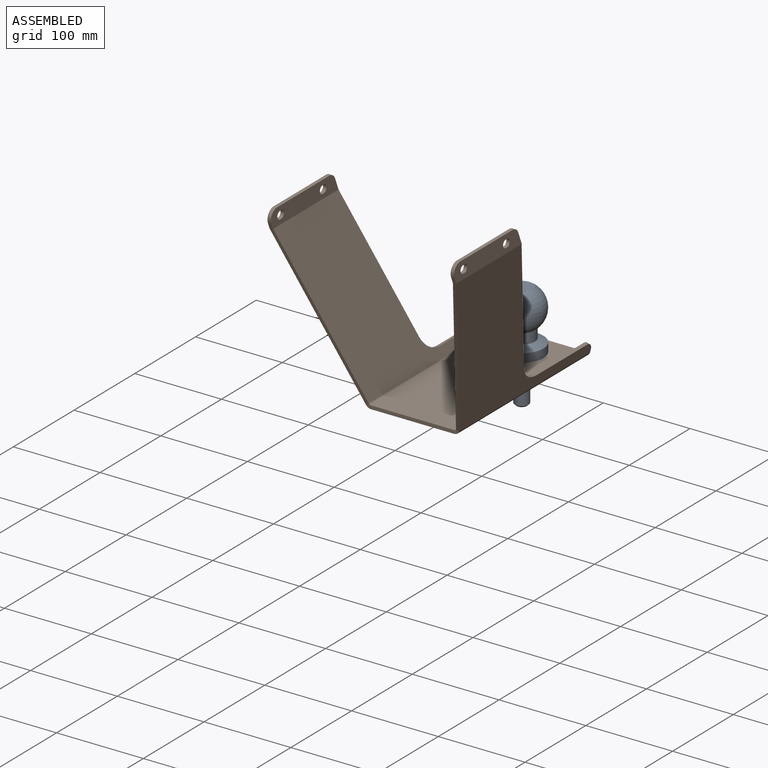
[diagram: assembled view]
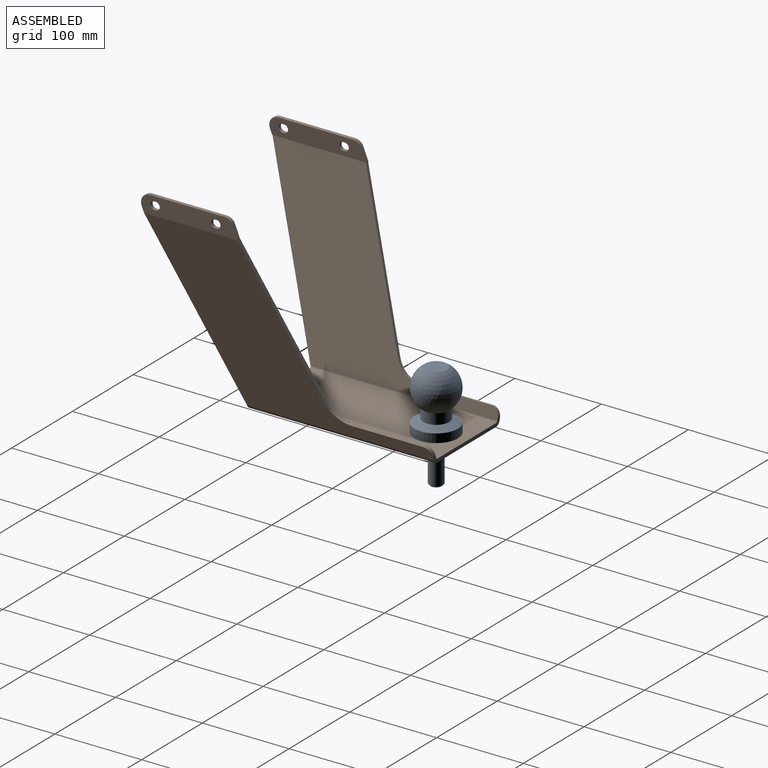
[diagram: assembled view, second angle]
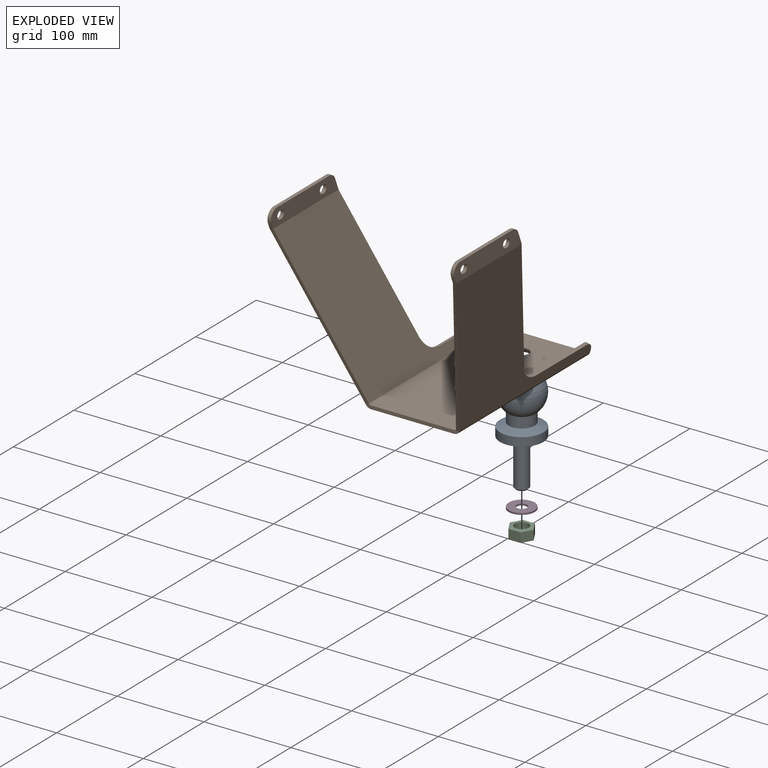
[diagram: exploded view]
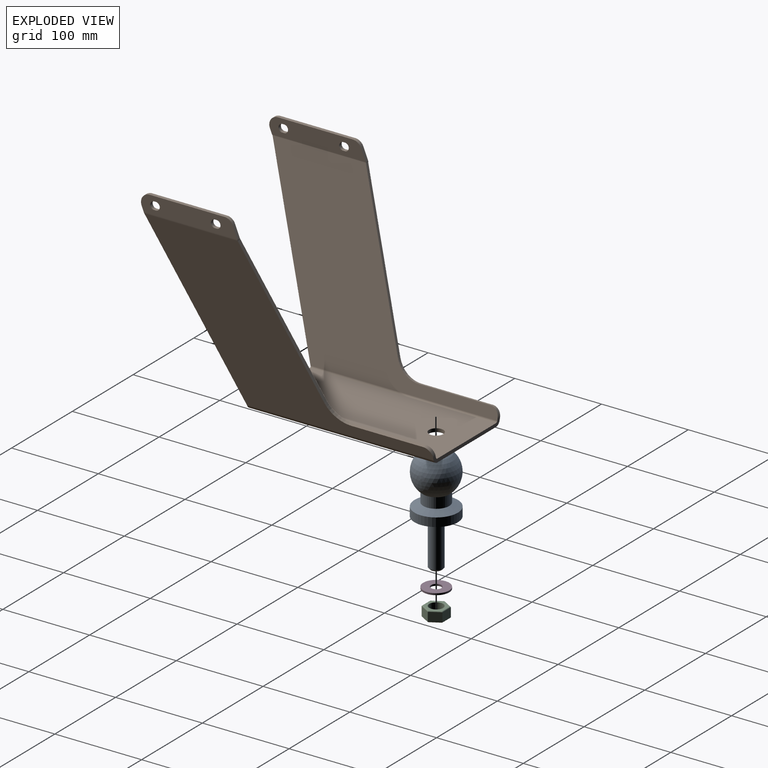
[diagram: exploded view, second angle]
ASSEMBLY  parts=4 mates=3
PART A: 9 faces, bbox 50x50x123 mm
  f0: plane 12x12mm, normal (0,0,-1), area 113.1mm2, adj f8
  f1: plane 25x25mm, normal (0,0,1), area 490.9mm2, adj f2
  f2: sphere r=25mm, area 6542.5mm2, adj f1,f3
  f3: cylinder r=15mm len=30mm, axis (0,0,1), area 1131mm2, adj f2,f4
  f4: cone r=25mm half-angle=66.5deg, axis (0,0,-1), area 1370.4mm2, adj f3,f5
  f5: cylinder r=25mm len=50mm, axis (0,0,1), area 1570.8mm2, adj f4,f6
  f6: plane 50x50mm, normal (0,0,-1), area 1762.4mm2, adj f5,f7
  f7: cylinder r=8mm len=53mm, axis (0,0,1), area 2664.1mm2, adj f6,f8
  f8: cone r=8mm half-angle=45deg, axis (0,0,1), area 124.4mm2, adj f0,f7
PART B: 67 faces, bbox 215.2x300x224 mm
  f0: plane 96.47x4mm, normal (0,1,0), area 385.9mm2, adj f3,f4,f33,f64
  f1: cylinder r=8.25mm len=16.5mm, axis (0,0,1), area 207.3mm2, adj f3,f4
  f2: plane 96.47x4mm, normal (0,-1,0), area 385.9mm2, adj f3,f4,f32,f63
  f3: plane 215x96.47mm, normal (0,0,1), area 20527.3mm2, adj f0,f1,f2,f35,f66
  f4: plane 215x96.47mm, normal (0,0,-1), area 20527.3mm2, adj f0,f1,f2,f34,f65
  f5: plane 296.16x198mm, normal (0.97,0,0.26), area 23512.5mm2, adj f6,f8,f9,f10,f11,f12,f31,f35
  f6: plane 199.04x80.89mm, normal (0.1,-0.93,-0.35), area 881.5mm2, adj f5,f7,f28,f32
  f7: plane 296.16x198mm, normal (-0.97,0,-0.26), area 23512.5mm2, adj f6,f8,f9,f10,f11,f12,f30,f34
  f8: plane 4.57x3.67mm, normal (0,1,0), area 10.9mm2, adj f5,f7,f11,f33
  f9: plane 82.28x3.86mm, normal (-0.26,0,0.97), area 329.1mm2, adj f5,f7,f11,f12
  f10: plane 168.4x68.38mm, normal (-0.1,0.93,0.35), area 745.1mm2, adj f5,f7,f12,f29
  f11: cylinder r=10mm len=10.69mm, axis (0.97,0,0.26), area 62.8mm2, adj f5,f7,f8,f9
  f12: cylinder r=30mm len=27.91mm, axis (-0.97,0,-0.26), area 143.4mm2, adj f5,f7,f9,f10
  f13: plane 4x2mm, normal (0,0,1), area 8mm2, adj f14,f23,f24,f25
  f14: cylinder r=4.5mm len=9mm, axis (1,0,0), area 56.5mm2, adj f13,f15,f24,f25
  f15: plane 4x2mm, normal (0,0,-1), area 8mm2, adj f14,f23,f24,f25
  f16: plane 4x2mm, normal (0,0,-1), area 8mm2, adj f17,f22,f24,f25
  f17: cylinder r=4.5mm len=9mm, axis (1,0,0), area 56.5mm2, adj f16,f18,f24,f25
  f18: plane 4x2mm, normal (0,0,1), area 8mm2, adj f17,f22,f24,f25
  f19: plane 86.42x4mm, normal (0,0,1), area 345.7mm2, adj f24,f25,f26,f27
  f20: plane 5.92x4mm, normal (0,-0.93,-0.38), area 25.6mm2, adj f24,f25,f26,f28
  f21: plane 13.48x5.51mm, normal (0,0.93,0.38), area 58.2mm2, adj f24,f25,f27,f29
  f22: cylinder r=4.5mm len=9mm, axis (1,0,0), area 56.5mm2, adj f16,f18,f24,f25
  f23: cylinder r=4.5mm len=9mm, axis (1,0,0), area 56.5mm2, adj f13,f15,f24,f25
  f24: plane 111.18x19.7mm, normal (1,0,0), area 1905.6mm2, adj f13,f14,f15,f16,f17,f18,f19,f20
  f25: plane 111.18x19.7mm, normal (-1,0,0), area 1905.6mm2, adj f13,f14,f15,f16,f17,f18,f19,f20
  f26: cylinder r=10mm len=13.78mm, axis (1,0,0), area 78.3mm2, adj f19,f20,f24,f25
  f27: cylinder r=10mm len=9.26mm, axis (1,0,0), area 47.3mm2, adj f19,f21,f24,f25
  f28: bspline ~4.08x1.63mm, area 5.3mm2, adj f6,f20,f30,f31
  f29: bspline ~4.08x1.63mm, area 4.6mm2, adj f10,f21,f30,f31
  f30: cylinder r=6.3mm len=108.27mm, axis (0,-1,0), area 177.8mm2, adj f7,f25,f28,f29
  f31: cylinder r=2.3mm len=108.27mm, axis (0,-1,0), area 64.9mm2, adj f5,f24,f28,f29
  f32: bspline ~6.09x5.7mm, area 22.9mm2, adj f2,f6,f34,f35
  f33: plane 6.09x5.7mm, normal (0,1,0), area 22.5mm2, adj f0,f8,f34,f35
  f34: cylinder r=6.3mm len=215.27mm, axis (0,-1,0), area 1771.9mm2, adj f4,f7,f32,f33
  f35: cylinder r=2.3mm len=215.27mm, axis (0,-1,0), area 646.9mm2, adj f3,f5,f32,f33
  f36: plane 296.16x198mm, normal (0.97,0,-0.26), area 23512.5mm2, adj f37,f39,f40,f41,f42,f43,f61,f65
  f37: plane 199.04x80.89mm, normal (-0.1,-0.93,-0.35), area 881.5mm2, adj f36,f38,f59,f63
  f38: plane 296.16x198mm, normal (-0.97,0,0.26), area 23512.5mm2, adj f37,f39,f40,f41,f42,f43,f62,f66
  f39: plane 4.57x3.67mm, normal (0,1,0), area 10.9mm2, adj f36,f38,f42,f64
  f40: plane 168.4x68.38mm, normal (0.1,0.93,0.35), area 745.1mm2, adj f36,f38,f43,f60
  f41: plane 82.28x3.86mm, normal (0.26,0,0.97), area 329.1mm2, adj f36,f38,f42,f43
  f42: cylinder r=10mm len=10.69mm, axis (0.97,0,-0.26), area 62.8mm2, adj f36,f38,f39,f41
  f43: cylinder r=30mm len=27.91mm, axis (0.97,0,-0.26), area 143.4mm2, adj f36,f38,f40,f41
  f44: plane 4x2mm, normal (0,0,-1), area 8mm2, adj f45,f54,f55,f56
  f45: cylinder r=4.5mm len=9mm, axis (-1,0,0), area 56.5mm2, adj f44,f46,f55,f56
  f46: plane 4x2mm, normal (0,0,1), area 8mm2, adj f45,f54,f55,f56
  f47: plane 4x2mm, normal (0,0,-1), area 8mm2, adj f48,f53,f55,f56
  f48: cylinder r=4.5mm len=9mm, axis (-1,0,0), area 56.5mm2, adj f47,f49,f55,f56
  f49: plane 4x2mm, normal (0,0,1), area 8mm2, adj f48,f53,f55,f56
  f50: plane 5.92x4mm, normal (0,-0.93,-0.38), area 25.6mm2, adj f55,f56,f58,f59
  f51: plane 86.42x4mm, normal (0,0,1), area 345.7mm2, adj f55,f56,f57,f58
  f52: plane 13.48x5.51mm, normal (0,0.93,0.38), area 58.2mm2, adj f55,f56,f57,f60
  f53: cylinder r=4.5mm len=9mm, axis (-1,0,0), area 56.5mm2, adj f47,f49,f55,f56
  f54: cylinder r=4.5mm len=9mm, axis (-1,0,0), area 56.5mm2, adj f44,f46,f55,f56
  f55: plane 111.18x19.7mm, normal (-1,0,0), area 1905.6mm2, adj f44,f45,f46,f47,f48,f49,f50,f51
  f56: plane 111.18x19.7mm, normal (1,0,0), area 1905.6mm2, adj f44,f45,f46,f47,f48,f49,f50,f51
  f57: cylinder r=10mm len=9.26mm, axis (1,0,0), area 47.3mm2, adj f51,f52,f55,f56
  f58: cylinder r=10mm len=13.78mm, axis (1,0,0), area 78.3mm2, adj f50,f51,f55,f56
  f59: bspline ~4.08x1.63mm, area 5.3mm2, adj f37,f50,f61,f62
  f60: bspline ~4.08x1.63mm, area 4.6mm2, adj f40,f52,f61,f62
  f61: cylinder r=6.3mm len=108.27mm, axis (0,-1,0), area 177.8mm2, adj f36,f56,f59,f60
  f62: cylinder r=2.3mm len=108.27mm, axis (0,-1,0), area 64.9mm2, adj f38,f55,f59,f60
  f63: bspline ~6.09x5.7mm, area 22.9mm2, adj f2,f37,f65,f66
  f64: plane 6.09x5.7mm, normal (0,1,0), area 22.5mm2, adj f0,f39,f65,f66
  f65: cylinder r=6.3mm len=215.27mm, axis (0,-1,0), area 1771.9mm2, adj f4,f36,f63,f64
  f66: cylinder r=2.3mm len=215.27mm, axis (0,-1,0), area 646.9mm2, adj f3,f38,f63,f64
PART C: 21 faces, bbox 27.7x24x12 mm
  f0: plane 12x10mm, normal (0.87,0.5,0), area 138.6mm2, adj f1,f5,f12,f18
  f1: plane 13.86x10mm, normal (0,1,0), area 138.6mm2, adj f0,f2,f10,f16
  f2: plane 12x10mm, normal (-0.87,0.5,0), area 138.6mm2, adj f1,f3,f9,f15
  f3: plane 12x10mm, normal (-0.87,-0.5,0), area 138.6mm2, adj f2,f4,f11,f17
  f4: plane 13.86x10mm, normal (0,-1,0), area 138.6mm2, adj f3,f5,f13,f19
  f5: plane 12x10mm, normal (0.87,-0.5,0), area 138.6mm2, adj f0,f4,f14,f20
  f6: cylinder r=8mm len=16mm, axis (0,0,-1), area 603.2mm2, adj f7,f8
  f7: plane 25.4x22mm, normal (0,0,1), area 218.1mm2, adj f6,f15,f16,f17,f18,f19,f20
  f8: plane 25.4x22mm, normal (0,0,-1), area 218.1mm2, adj f6,f9,f10,f11,f12,f13,f14
  f9: cylinder r=1mm len=12.5mm, axis (-0.5,-0.87,0), area 21.1mm2, adj f2,f8,f10,f11
  f10: cylinder r=1mm len=13.86mm, axis (-1,0,0), area 21.1mm2, adj f1,f8,f9,f12
  f11: cylinder r=1mm len=12.5mm, axis (0.5,-0.87,0), area 21.1mm2, adj f3,f8,f9,f13
  f12: cylinder r=1mm len=12.5mm, axis (-0.5,0.87,0), area 21.1mm2, adj f0,f8,f10,f14
  f13: cylinder r=1mm len=13.86mm, axis (1,0,0), area 21.1mm2, adj f4,f8,f11,f14
  f14: cylinder r=1mm len=12.5mm, axis (0.5,0.87,0), area 21.1mm2, adj f5,f8,f12,f13
  f15: cylinder r=1mm len=12.5mm, axis (0.5,0.87,0), area 21.1mm2, adj f2,f7,f16,f17
  f16: cylinder r=1mm len=13.86mm, axis (1,0,0), area 21.1mm2, adj f1,f7,f15,f18
  f17: cylinder r=1mm len=12.5mm, axis (-0.5,0.87,0), area 21.1mm2, adj f3,f7,f15,f19
  f18: cylinder r=1mm len=12.5mm, axis (0.5,-0.87,0), area 21.1mm2, adj f0,f7,f16,f20
  f19: cylinder r=1mm len=13.86mm, axis (-1,0,0), area 21.1mm2, adj f4,f7,f17,f20
  f20: cylinder r=1mm len=12.5mm, axis (-0.5,-0.87,0), area 21.1mm2, adj f5,f7,f18,f19
PART D: 4 faces, bbox 30x30x2 mm
  f0: cylinder r=6mm len=12mm, axis (0,0,-1), area 75.4mm2, adj f2,f3
  f1: cylinder r=15mm len=30mm, axis (0,0,-1), area 188.5mm2, adj f2,f3
  f2: plane 30x30mm, normal (0,0,1), area 593.8mm2, adj f0,f1
  f3: plane 30x30mm, normal (0,0,-1), area 593.8mm2, adj f0,f1
PLACE A t=(-23.22,113.37,-78.76)mm
PLACE B t=(-23.22,148.37,-23.76)mm fixed
PLACE C t=(-23.22,113.37,-37.49)mm
PLACE D t=(-23.22,113.37,-25.76)mm
MATE slider A.f3 <-> B.f1  axis (0,0,1) through (-23.22,113.37,-23.76)mm
MATE slider D.f0 <-> B.f1  axis (0,0,1) through (-23.22,113.37,-23.76)mm
MATE slider C.f6 <-> D.f1  axis (0,0,1) through (-23.22,113.37,-25.49)mm
